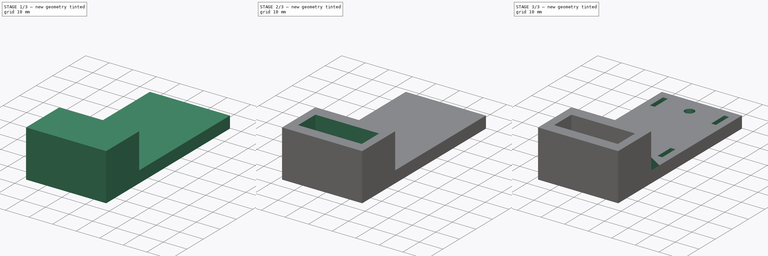
[diagram: build sequence overview — one tinted view per stage of 3, left to right]
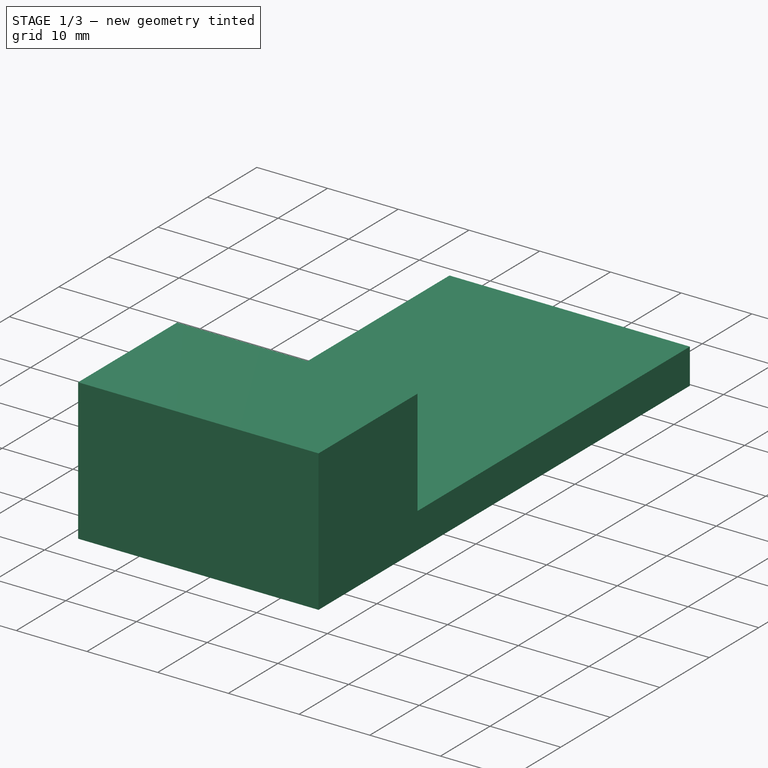
[diagram: stage 1 of 3 — iso view after this stage's code; geometry added in this stage tinted green]
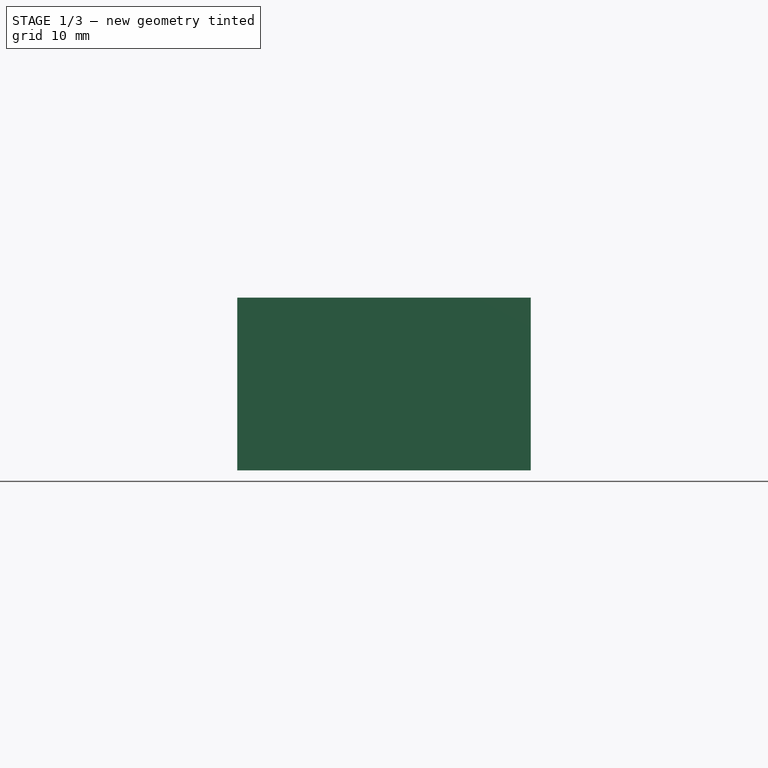
[diagram: stage 1 of 3 — front view after this stage's code; geometry added in this stage tinted green]
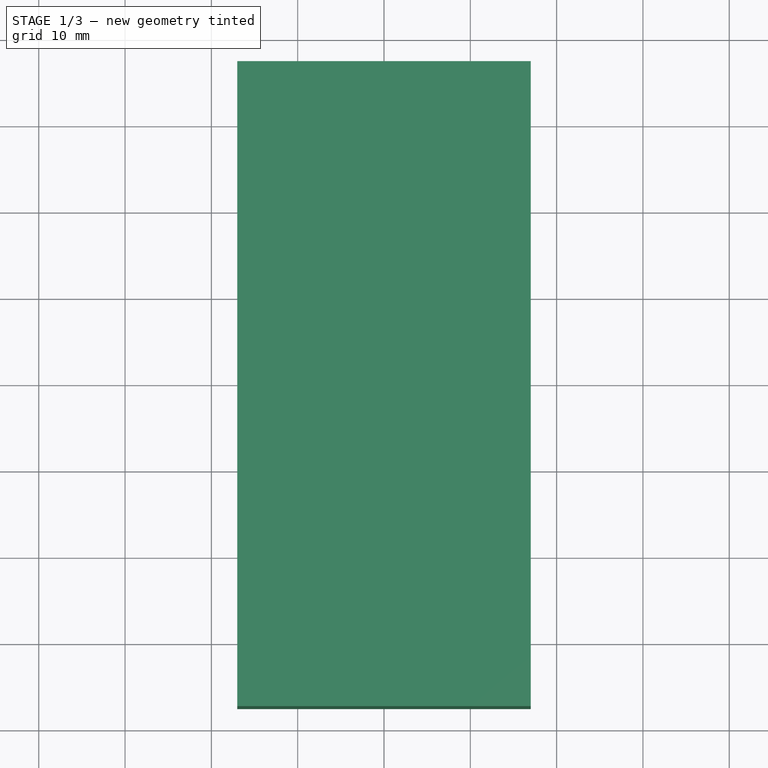
[diagram: stage 1 of 3 — top view after this stage's code; geometry added in this stage tinted green]
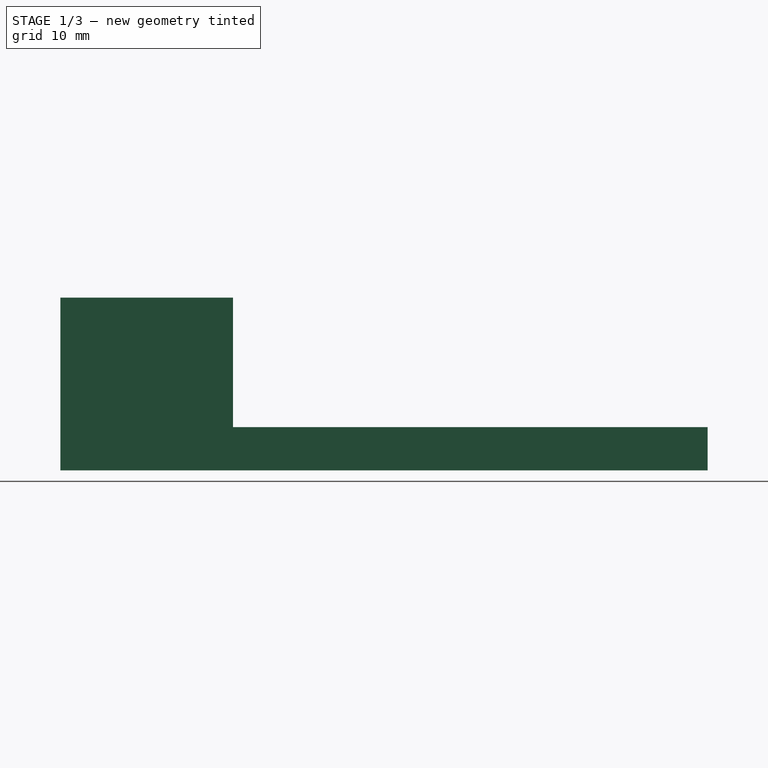
[diagram: stage 1 of 3 — right view after this stage's code; geometry added in this stage tinted green]
FCSTD DOCUMENT  (FreeCAD 1.0R39109 (Git))
Label: mounting bracket
Comment: This file was created as a modification of the misol_stevenson_screen_bottom.STL, created by musgos, posted on Thingiverse as item 4153206 and released under a CC BY 4.0 license
License: Creative Commons Attribution-ShareAlike 4.0
LicenseURL: https://creativecommons.org/licenses/by-sa/4.0/
objects: Sketcher::SketchObject×5, PartDesign::Pad×2, PartDesign::Pocket×2, PartDesign::Hole×1, PartDesign::Chamfer×1, PartDesign::Body×1
note: 29 computed .brp shape members not serialized (recipe doc carries the construction recipe); baked Part::Feature solids carry a one-line shape summary decoded from their .brp

FEATURE [Sketcher::SketchObject] Sketch
  ArcFitTolerance = 1e-06
  AttachmentSupport = -> [XY_Plane]
  FullyConstrained = true
  MakeInternals = false
  MapMode = 5
  sketch-geometry (5):
    g0: LineSegment StartX=-17 StartY=37.5 StartZ=0 EndX=-17 EndY=-37.5 EndZ=0
    g1: LineSegment StartX=-17 StartY=-37.5 StartZ=0 EndX=17 EndY=-37.5 EndZ=0
    g2: LineSegment StartX=17 StartY=-37.5 StartZ=0 EndX=17 EndY=37.5 EndZ=0
    g3: LineSegment StartX=17 StartY=37.5 StartZ=0 EndX=-17 EndY=37.5 EndZ=0
    g4: GeomPoint [constr] X=0 Y=0 Z=0
  constraints (12):
    c: Coincident(g0,g1)
    c: Coincident(g1,g2)
    c: Coincident(g2,g3)
    c: Coincident(g3,g0)
    c: Vertical(g0)
    c: Vertical(g2)
    c: Horizontal(g1)
    c: Horizontal(g3)
    c: Symmetric(g2,g0,g4)
    c: Coincident(g4,g-1)
    c: DistanceX(g1,g1) = 34
    c: DistanceY(g2,g2) = 75
FEATURE [PartDesign::Pad] Pad
  Direction = (0,0,1)
  Length = 5
  Length2 = 10
  Profile = -> Sketch
  ReferenceAxis = -> Sketch [N_Axis]
  Suppressed = false
  Type = 0
FEATURE [Sketcher::SketchObject] Sketch001
  ArcFitTolerance = 1e-06
  AttachmentSupport = -> [Pad]
  ExternalGeometry = -> [Pad]
  FullyConstrained = true
  MakeInternals = false
  MapMode = 5
  Placement = pos=(0,0,5) rot=(0,0,1;0rad)
  sketch-geometry (4):
    g0: LineSegment StartX=-17 StartY=-37.5 StartZ=0 EndX=17 EndY=-37.5 EndZ=0
    g1: LineSegment StartX=17 StartY=-37.5 StartZ=0 EndX=17 EndY=-17.5 EndZ=0
    g2: LineSegment StartX=17 StartY=-17.5 StartZ=0 EndX=-17 EndY=-17.5 EndZ=0
    g3: LineSegment StartX=-17 StartY=-17.5 StartZ=0 EndX=-17 EndY=-37.5 EndZ=0
  constraints (11):
    c: Coincident(g0,g1)
    c: Coincident(g1,g2)
    c: Coincident(g2,g3)
    c: Coincident(g3,g0)
    c: Horizontal(g0)
    c: Horizontal(g2)
    c: Vertical(g1)
    c: Vertical(g3)
    c: Coincident(g0,g-3)
    c: PointOnObject(g1,g-4)
    c: DistanceY(g1,g1) = 20
FEATURE [PartDesign::Pad] Pad001
  BaseFeature = -> Pad
  Direction = (0,0,1)
  Length = 15
  Length2 = 10
  Profile = -> Sketch001
  ReferenceAxis = -> Sketch001 [N_Axis]
  Suppressed = false
  Type = 0
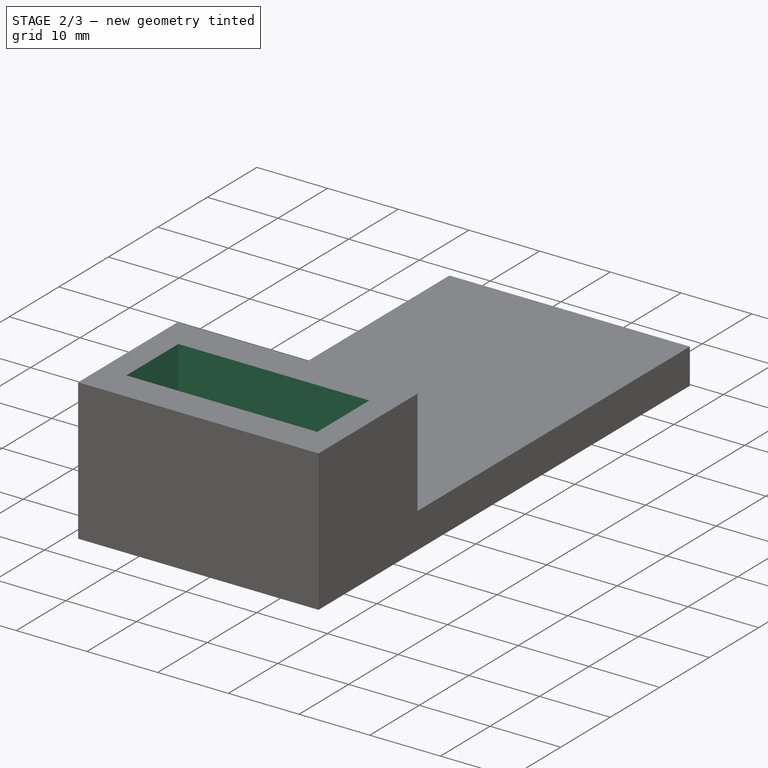
[diagram: stage 2 of 3 — iso view after this stage's code; geometry added in this stage tinted green]
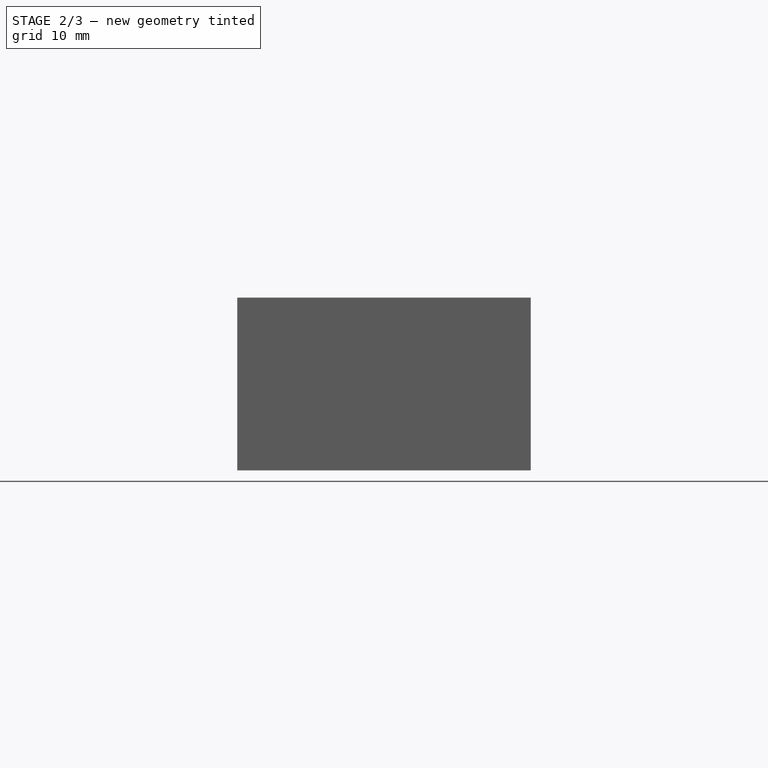
[diagram: stage 2 of 3 — front view after this stage's code; geometry added in this stage tinted green]
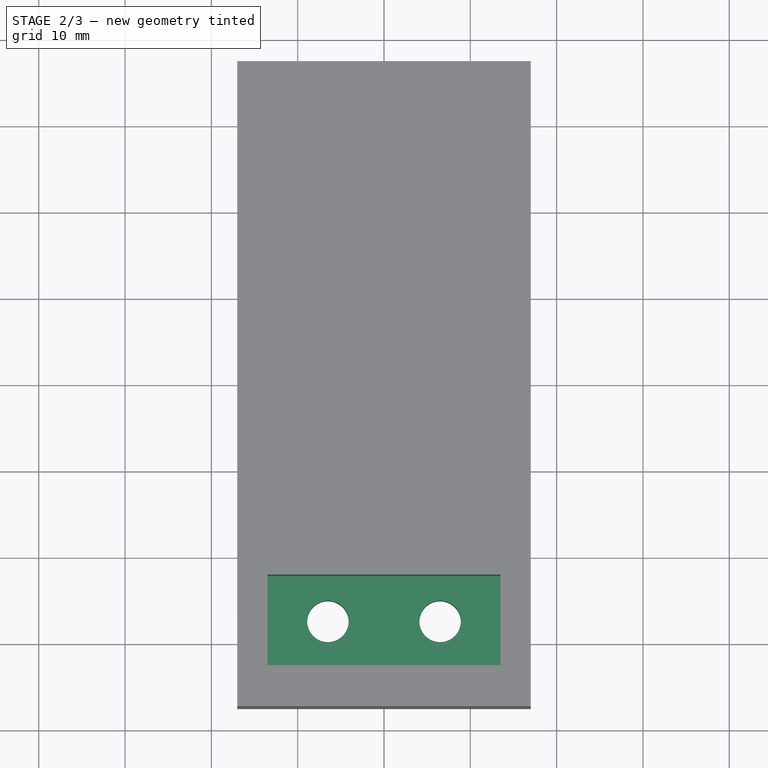
[diagram: stage 2 of 3 — top view after this stage's code; geometry added in this stage tinted green]
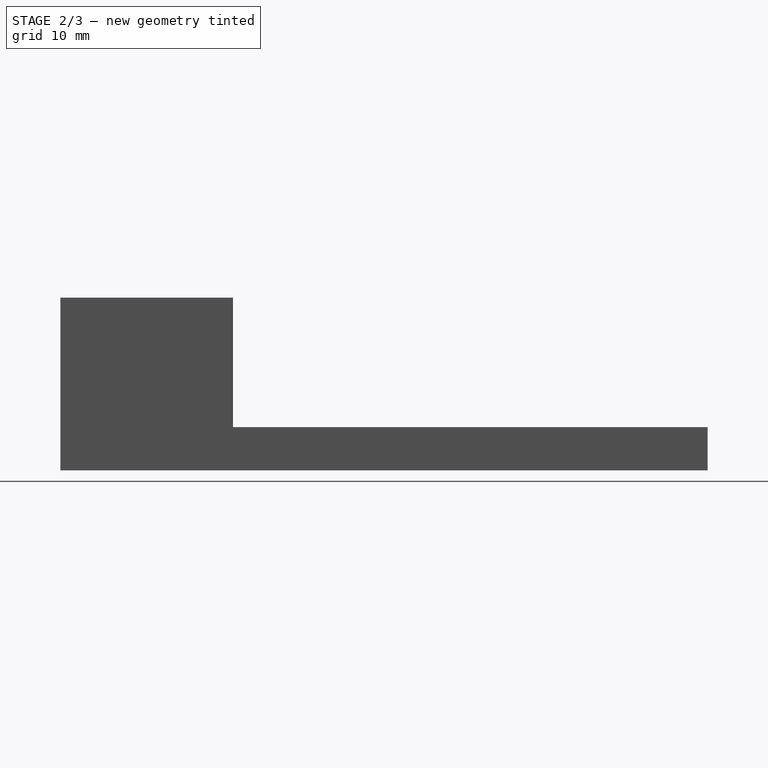
[diagram: stage 2 of 3 — right view after this stage's code; geometry added in this stage tinted green]
FEATURE [Sketcher::SketchObject] Sketch002
  ArcFitTolerance = 1e-06
  AttachmentSupport = -> [Pad001]
  ExternalGeometry = -> [Pad001]
  FullyConstrained = true
  MakeInternals = false
  MapMode = 5
  Placement = pos=(0,0,20) rot=(0,0,1;0rad)
  sketch-geometry (6):
    g0: LineSegment StartX=-13.5 StartY=-22.25 StartZ=0 EndX=-13.5 EndY=-32.75 EndZ=0
    g1: LineSegment StartX=-13.5 StartY=-32.75 StartZ=0 EndX=13.5 EndY=-32.75 EndZ=0
    g2: LineSegment StartX=13.5 StartY=-32.75 StartZ=0 EndX=13.5 EndY=-22.25 EndZ=0
    g3: LineSegment StartX=13.5 StartY=-22.25 StartZ=0 EndX=-13.5 EndY=-22.25 EndZ=0
    g4: GeomPoint [constr] X=0 Y=-27.5 Z=0
    g5: GeomPoint X=-17 Y=-27.5 Z=0
  constraints (14):
    c: Coincident(g0,g1)
    c: Coincident(g1,g2)
    c: Coincident(g2,g3)
    c: Coincident(g3,g0)
    c: Vertical(g0)
    c: Vertical(g2)
    c: Horizontal(g1)
    c: Horizontal(g3)
    c: Symmetric(g2,g0,g4)
    c: PointOnObject(g4,g-2)
    c: DistanceX(g1,g1) = 27
    c: DistanceY(g2,g2) = 10.5
    c: Symmetric(g-3,g-3,g5)
    c: Horizontal(g5,g4)
FEATURE [PartDesign::Pocket] Pocket
  BaseFeature = -> Pad001
  Direction = (0,0,-1)
  Length = 10
  Length2 = 5
  Profile = -> Sketch002
  ReferenceAxis = -> Sketch002 [N_Axis]
  Suppressed = false
  Type = 0
FEATURE [Sketcher::SketchObject] Sketch003
  ArcFitTolerance = 1e-06
  AttachmentSupport = -> [Pocket]
  ExternalGeometry = -> [Pocket]
  FullyConstrained = true
  MakeInternals = false
  MapMode = 5
  Placement = pos=(0,0,0) rot=(1,0,0;3.14159rad)
  sketch-geometry (5):
    g0: GeomPoint X=-17 Y=27.5 Z=0
    g1: GeomPoint X=17 Y=27.5 Z=0
    g2: LineSegment [constr] StartX=-17 StartY=27.5 StartZ=0 EndX=17 EndY=27.5 EndZ=0
    g3: Circle CenterX=-6.5 CenterY=27.5 CenterZ=0 NormalX=0 NormalY=0 NormalZ=1 AngleXU=0 Radius=2
    g4: Circle CenterX=6.5 CenterY=27.5 CenterZ=0 NormalX=0 NormalY=0 NormalZ=1 AngleXU=0 Radius=2
  constraints (9):
    c: Symmetric(g-3,g-3,g0)
    c: Symmetric(g-4,g-4,g1)
    c: Coincident(g2,g0)
    c: Coincident(g2,g1)
    c: PointOnObject(g4,g2)
    c: Symmetric(g3,g4,g-2)
    c: Equal(g3,g4)
    c: Diameter(g4) = 4
    c: DistanceX(g3,g4) = 13
FEATURE [PartDesign::Hole] Hole
  BaseFeature = -> Pocket
  CustomThreadClearance = 0
  Depth = 25
  DepthType = 0
  Diameter = 4.8
  DrillForDepth = false
  DrillPoint = 1
  DrillPointAngle = 118
  HoleCutCountersinkAngle = 90
  HoleCutCustomValues = false
  HoleCutDepth = 4
  HoleCutDiameter = 8.25
  HoleCutType = 1
  ModelThread = false
  Profile = -> Sketch003
  Suppressed = false
  Tapered = false
  TaperedAngle = 90
  ThreadClass = 0
  ThreadDepth = 25
  ThreadDepthType = 0
  ThreadDirection = 0
  ThreadFit = 0
  ThreadSize = 0
  ThreadType = 0
  Threaded = false
  UseCustomThreadClearance = false
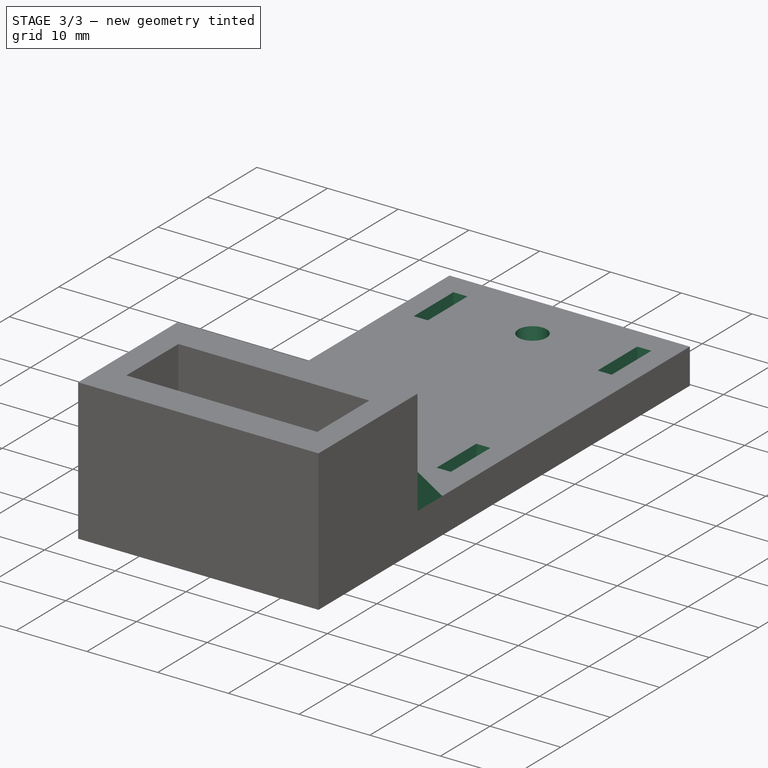
[diagram: stage 3 of 3 — iso view after this stage's code; geometry added in this stage tinted green]
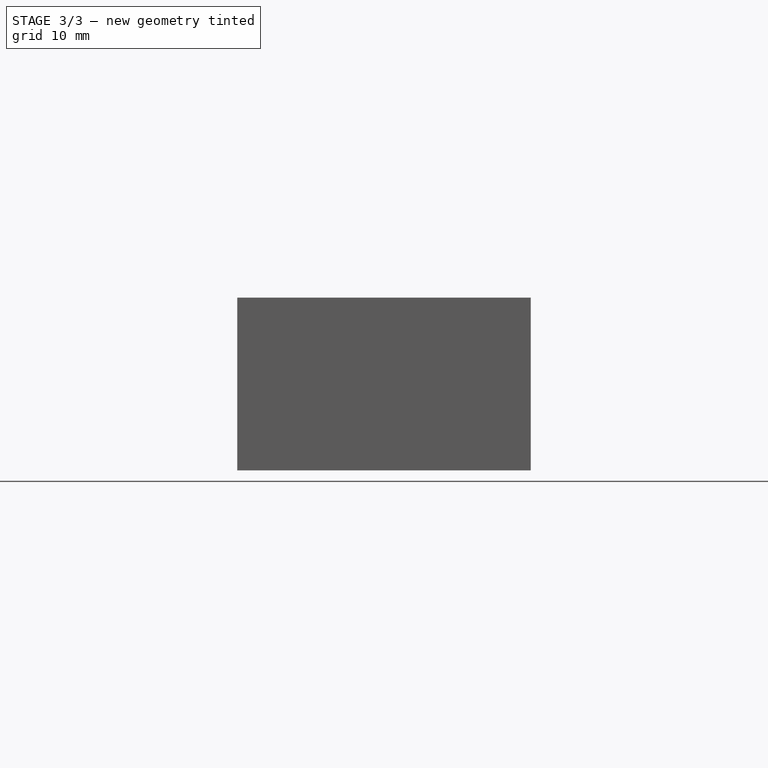
[diagram: stage 3 of 3 — front view after this stage's code; geometry added in this stage tinted green]
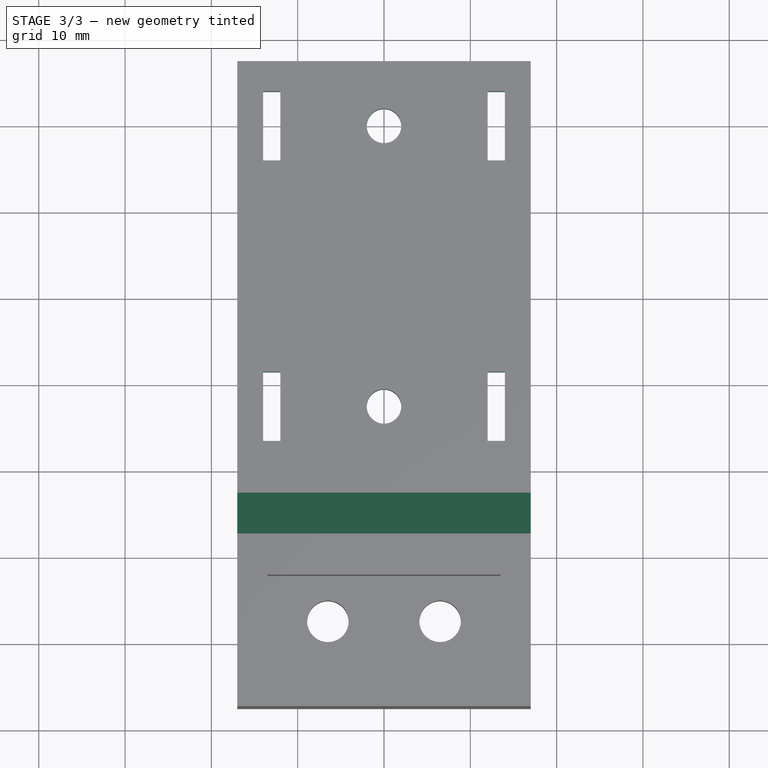
[diagram: stage 3 of 3 — top view after this stage's code; geometry added in this stage tinted green]
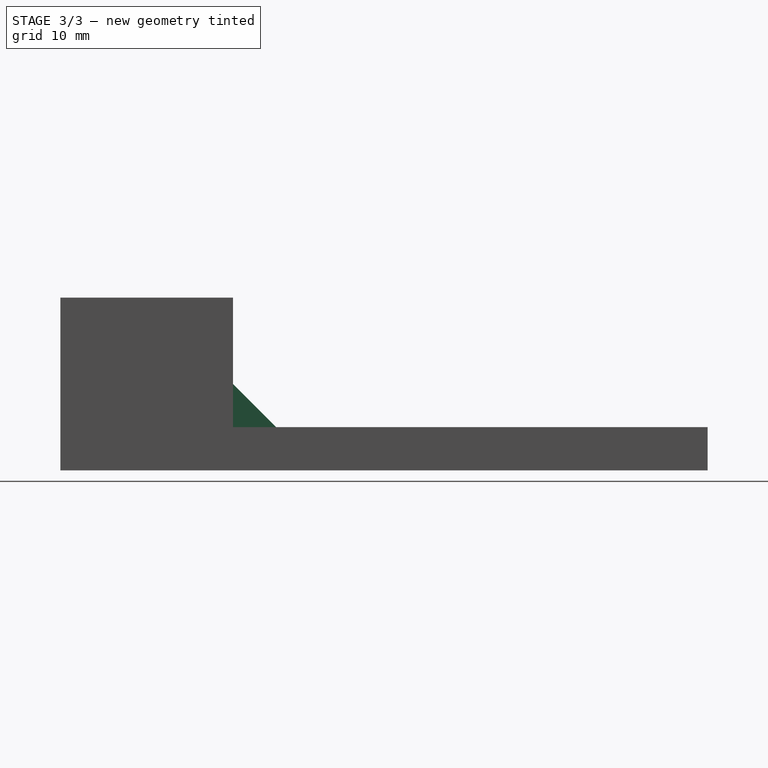
[diagram: stage 3 of 3 — right view after this stage's code; geometry added in this stage tinted green]
FEATURE [Sketcher::SketchObject] Sketch004
  ArcFitTolerance = 1e-06
  AttachmentSupport = -> [Hole]
  ExternalGeometry = -> [Hole]
  FullyConstrained = true
  MakeInternals = false
  MapMode = 5
  Placement = pos=(0,0,5) rot=(0,0,1;0rad)
  sketch-geometry (22):
    g0: LineSegment StartX=-14 StartY=34 StartZ=0 EndX=-14 EndY=26 EndZ=0
    g1: LineSegment StartX=-14 StartY=26 StartZ=0 EndX=-12 EndY=26 EndZ=0
    g2: LineSegment StartX=-12 StartY=26 StartZ=0 EndX=-12 EndY=34 EndZ=0
    g3: LineSegment StartX=-12 StartY=34 StartZ=0 EndX=-14 EndY=34 EndZ=0
    g4: GeomPoint [constr] X=-13 Y=30 Z=0
    g5: LineSegment StartX=12 StartY=34 StartZ=0 EndX=12 EndY=26 EndZ=0
    g6: LineSegment StartX=12 StartY=26 StartZ=0 EndX=14 EndY=26 EndZ=0
    g7: LineSegment StartX=14 StartY=26 StartZ=0 EndX=14 EndY=34 EndZ=0
    g8: LineSegment StartX=14 StartY=34 StartZ=0 EndX=12 EndY=34 EndZ=0
    g9: GeomPoint [constr] X=13 Y=30 Z=0
    g10: LineSegment StartX=-14 StartY=1.5 StartZ=0 EndX=-14 EndY=-6.5 EndZ=0
    g11: LineSegment StartX=-14 StartY=-6.5 StartZ=0 EndX=-12 EndY=-6.5 EndZ=0
    g12: LineSegment StartX=-12 StartY=-6.5 StartZ=0 EndX=-12 EndY=1.5 EndZ=0
    g13: LineSegment StartX=-12 StartY=1.5 StartZ=0 EndX=-14 EndY=1.5 EndZ=0
    g14: GeomPoint [constr] X=-13 Y=-2.5 Z=0
    g15: LineSegment StartX=12 StartY=1.5 StartZ=0 EndX=12 EndY=-6.5 EndZ=0
    g16: LineSegment StartX=12 StartY=-6.5 StartZ=0 EndX=14 EndY=-6.5 EndZ=0
    g17: LineSegment StartX=14 StartY=-6.5 StartZ=0 EndX=14 EndY=1.5 EndZ=0
    g18: LineSegment StartX=14 StartY=1.5 StartZ=0 EndX=12 EndY=1.5 EndZ=0
    g19: GeomPoint [constr] X=13 Y=-2.5 Z=0
    g20: Circle CenterX=0 CenterY=30 CenterZ=0 NormalX=0 NormalY=0 NormalZ=1 AngleXU=0 Radius=2
    g21: Circle CenterX=0 CenterY=-2.5 CenterZ=0 NormalX=0 NormalY=0 NormalZ=1 AngleXU=0 Radius=2
  constraints (56):
    c: Coincident(g0,g1)
    c: Coincident(g1,g2)
    c: Coincident(g2,g3)
    c: Coincident(g3,g0)
    c: Vertical(g0)
    c: Vertical(g2)
    c: Horizontal(g1)
    c: Horizontal(g3)
    c: Symmetric(g2,g0,g4)
    c: Coincident(g5,g6)
    c: Coincident(g6,g7)
    c: Coincident(g7,g8)
    c: Coincident(g8,g5)
    c: Vertical(g5)
    c: Vertical(g7)
    c: Horizontal(g6)
    c: Horizontal(g8)
    c: Symmetric(g7,g5,g9)
    c: Coincident(g10,g11)
    c: Coincident(g11,g12)
    c: Coincident(g12,g13)
    c: Coincident(g13,g10)
    c: Vertical(g10)
    c: Vertical(g12)
    c: Horizontal(g11)
    c: Horizontal(g13)
    c: Symmetric(g12,g10,g14)
    c: Coincident(g15,g16)
    c: Coincident(g16,g17)
    c: Coincident(g17,g18)
    c: Coincident(g18,g15)
    c: Vertical(g15)
    c: Vertical(g17)
    c: Horizontal(g16)
    c: Horizontal(g18)
    c: Symmetric(g17,g15,g19)
    c: PointOnObject(g20,g-2)
    c: PointOnObject(g21,g-2)
    c: Equal(g21,g20)
    c: Diameter(g20) = 4
    c: Symmetric(g4,g9,g20)
    c: Horizontal(g20,g9)
    c: Symmetric(g14,g19,g21)
    c: Horizontal(g19,g21)
    c: DistanceX(g8,g8) = 2
    c: DistanceY(g7,g7) = 8
    c: Equal(g5,g0)
    c: Equal(g0,g10)
    c: Equal(g10,g15)
    c: Equal(g18,g13)
    c: Equal(g13,g3)
    c: Equal(g3,g8)
    c: Vertical(g0,g10)
    c: DistanceY(g-6,g21) = 15
    c: DistanceY(g20,g-5) = 7.5
    c: DistanceX(g-6,g14) = 4
FEATURE [PartDesign::Pocket] Pocket001
  BaseFeature = -> Hole
  Direction = (0,0,-1)
  Length = 5
  Length2 = 5
  Profile = -> Sketch004
  ReferenceAxis = -> Sketch004 [N_Axis]
  Suppressed = false
  Type = 0
FEATURE [PartDesign::Chamfer] Chamfer
  Angle = 45
  Base = -> Pocket001 [Edge34]
  BaseFeature = -> Pocket001
  ChamferType = 0
  FlipDirection = false
  Size = 5
  Size2 = 1
  SupportTransform = false
  Suppressed = false
  UseAllEdges = false
FEATURE [PartDesign::Body] Body
  AllowCompound = false
  Group = -> [Sketch,Pad,Sketch001,Pad001,Sketch002,Pocket,Sketch003,Hole,Sketch004,Pocket001,Chamfer]
  Origin = -> Origin
  Tip = -> Chamfer
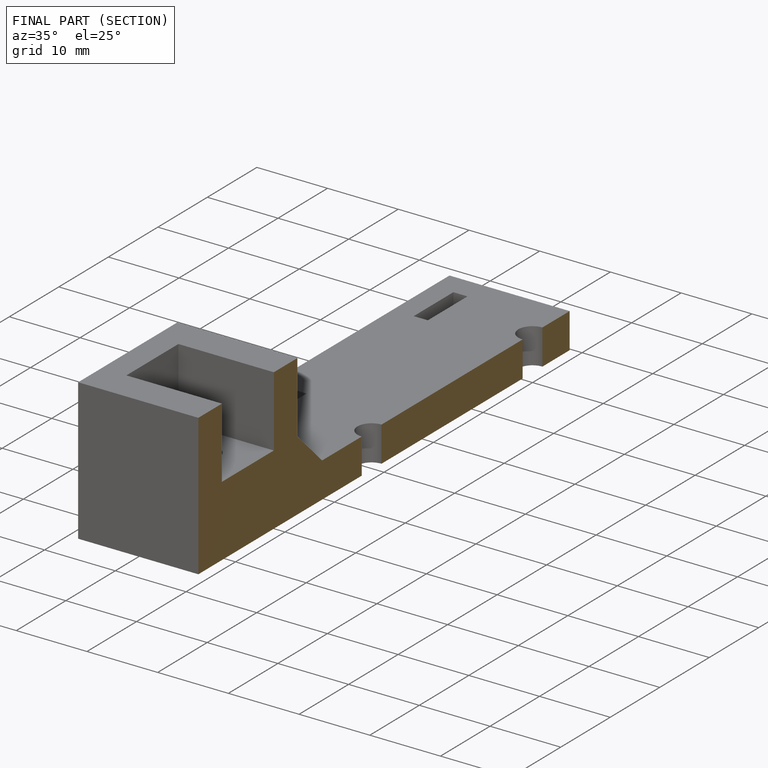
[diagram: finished part — half-section view (interior)]
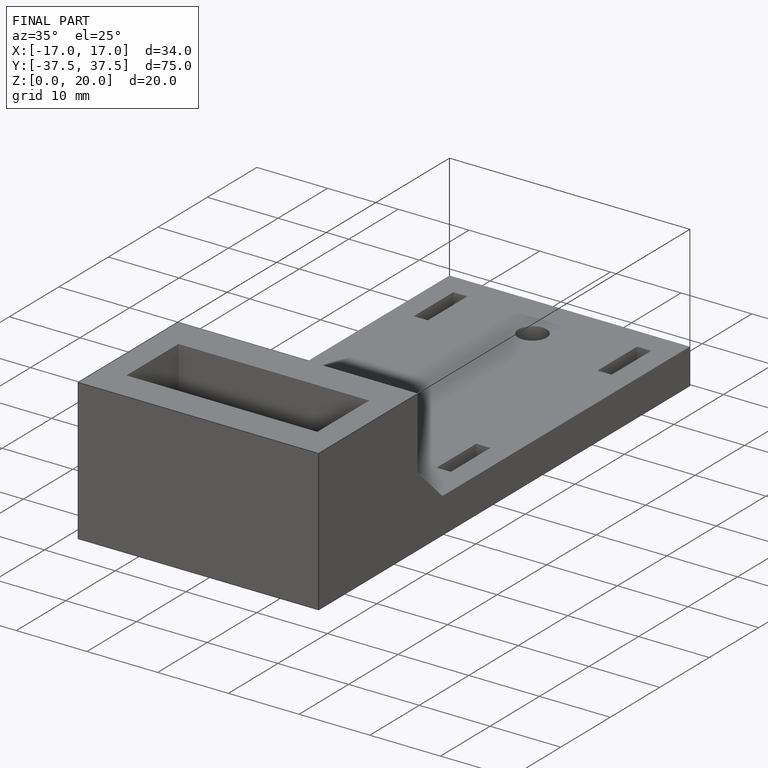
[diagram: finished part — iso view with bounding-box wireframe]
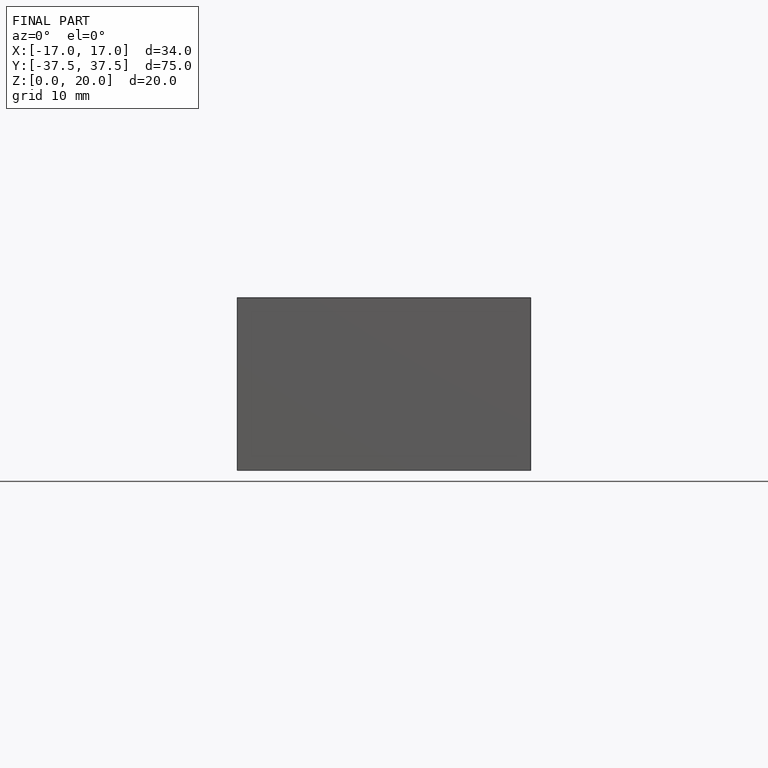
[diagram: finished part — front view with bounding-box wireframe]
